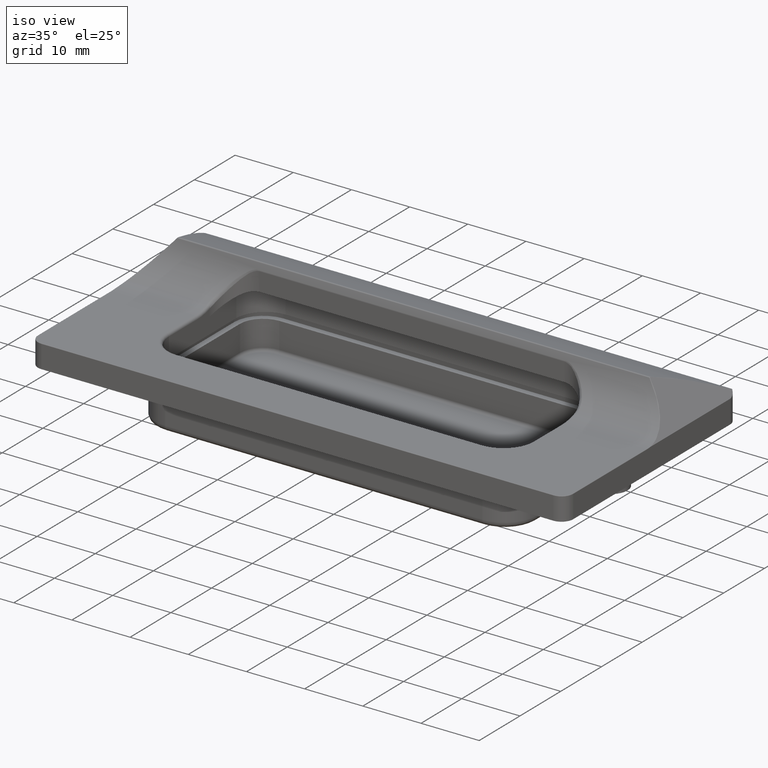
[diagram: clean part render]
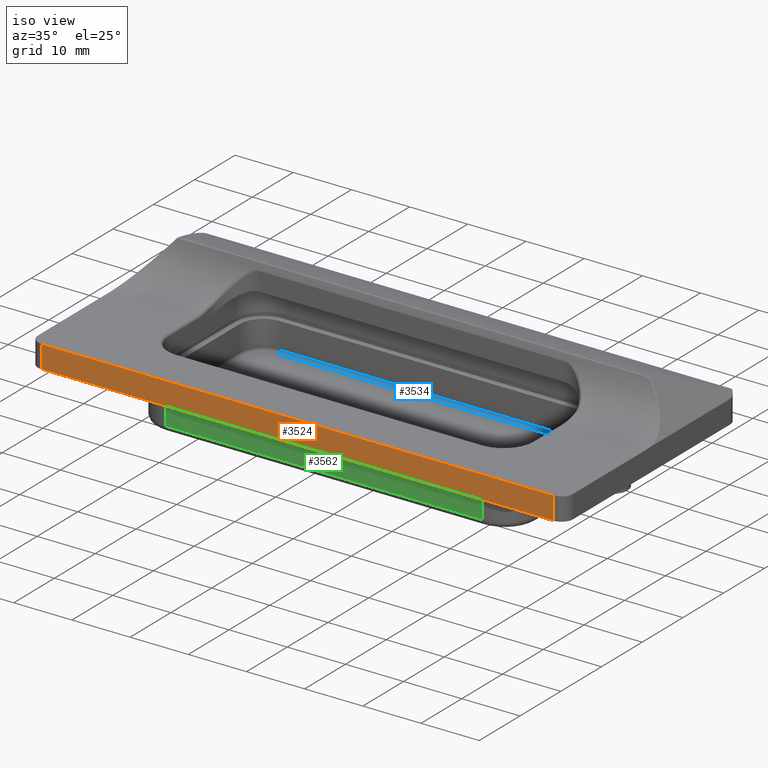
[diagram: same view with three faces highlighted in distinct colors, each labeled with its STEP entity id]
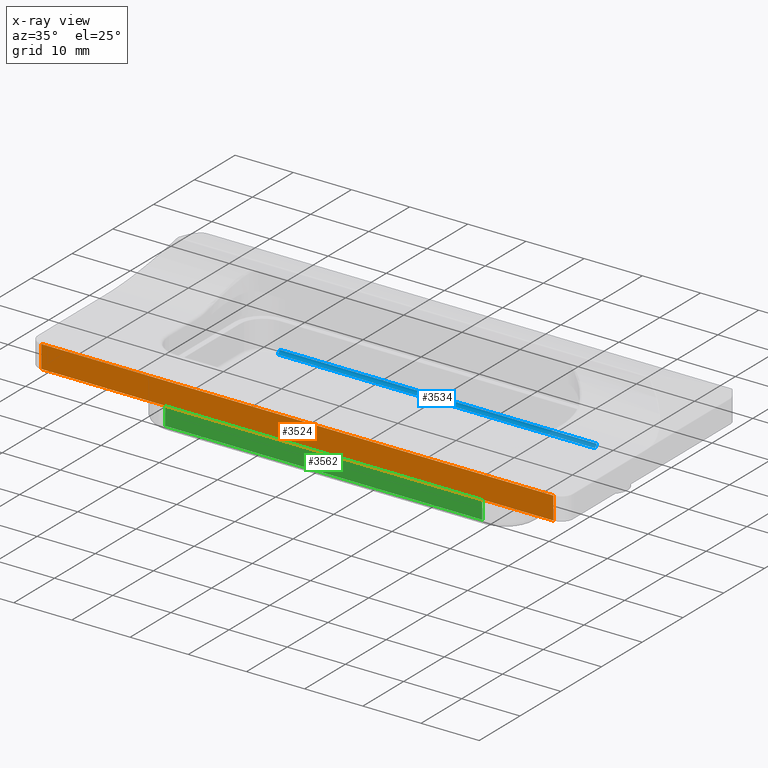
[diagram: x-ray of the same camera — body ghosted, the three highlighted faces saturated]
A machine part, iso view with three faces highlighted in distinct colors.
The next image is the same camera in x-ray (body ghosted, the three faces saturated) — at least one of them is partly hidden behind the body in this view.
Their STEP definitions:

[orange] entity #3524 — the highlighted planar face has unit normal (0, -1, -0).
#95=PLANE('',#3832);
#229=LINE('',#6875,#482);
#233=LINE('',#6908,#486);
#234=LINE('',#6910,#487);
#235=LINE('',#6911,#488);
#482=VECTOR('',#4515,88.);
#486=VECTOR('',#4537,3.9);
#487=VECTOR('',#4538,88.);
#488=VECTOR('',#4539,3.9);
#862=FACE_OUTER_BOUND('',#1080,.T.);
#1080=EDGE_LOOP('',(#2827,#2828,#2829,#2830));
#1618=VERTEX_POINT('',#6869);
#1619=VERTEX_POINT('',#6873);
#1623=VERTEX_POINT('',#6907);
#1624=VERTEX_POINT('',#6909);
#2049=EDGE_CURVE('',#1619,#1618,#229,.T.);
#2058=EDGE_CURVE('',#1623,#1619,#233,.T.);
#2059=EDGE_CURVE('',#1623,#1624,#234,.T.);
#2060=EDGE_CURVE('',#1618,#1624,#235,.T.);
#2827=ORIENTED_EDGE('',*,*,#2049,.F.);
#2828=ORIENTED_EDGE('',*,*,#2058,.F.);
#2829=ORIENTED_EDGE('',*,*,#2059,.T.);
#2830=ORIENTED_EDGE('',*,*,#2060,.F.);
#3524=ADVANCED_FACE('',(#862),#95,.T.);
#3832=AXIS2_PLACEMENT_3D('',#6906,#4535,#4536);
#4515=DIRECTION('',(1.,0.,0.));
#4535=DIRECTION('center_axis',(0.,-1.,-1.83697019872103E-16));
#4536=DIRECTION('ref_axis',(0.,1.83697019872103E-16,-1.));
#4537=DIRECTION('',(0.,-1.83697019872103E-16,1.));
#4538=DIRECTION('',(1.,0.,0.));
#4539=DIRECTION('',(0.,1.83697019872103E-16,-1.));
#6869=CARTESIAN_POINT('',(44.,2.64310193353749E-17,-0.100000000000004));
#6873=CARTESIAN_POINT('',(-44.,2.64310193353742E-17,-0.1));
#6875=CARTESIAN_POINT('',(0.,1.73472347597681E-17,-0.1));
#6906=CARTESIAN_POINT('Origin',(0.,0.,0.));
#6907=CARTESIAN_POINT('',(-44.,7.34788079488412E-16,-4.));
#6908=CARTESIAN_POINT('',(-44.,0.,0.043883767704977));
#6909=CARTESIAN_POINT('',(44.,7.34788079488412E-16,-4.));
#6910=CARTESIAN_POINT('',(0.,7.34788079488412E-16,-4.));
#6911=CARTESIAN_POINT('',(44.,0.,0.043883767704977));

[blue] entity #3534 — the highlighted cylindrical surface (edge-blend (fillet) strip) has radius 0.5 mm, axis along (1, 0, -0).
#245=LINE('',#6946,#498);
#246=LINE('',#6949,#499);
#498=VECTOR('',#4581,54.5);
#499=VECTOR('',#4584,54.5);
#696=CYLINDRICAL_SURFACE('',#3847,0.5);
#872=FACE_OUTER_BOUND('',#1091,.T.);
#1091=EDGE_LOOP('',(#2891,#2892,#2893,#2894));
#1298=CIRCLE('',#3848,0.5);
#1299=CIRCLE('',#3849,0.5);
#1631=VERTEX_POINT('',#6942);
#1632=VERTEX_POINT('',#6943);
#1633=VERTEX_POINT('',#6945);
#1634=VERTEX_POINT('',#6947);
#2074=EDGE_CURVE('',#1631,#1632,#1298,.T.);
#2075=EDGE_CURVE('',#1632,#1633,#245,.T.);
#2076=EDGE_CURVE('',#1633,#1634,#1299,.T.);
#2077=EDGE_CURVE('',#1634,#1631,#246,.T.);
#2891=ORIENTED_EDGE('',*,*,#2074,.T.);
#2892=ORIENTED_EDGE('',*,*,#2075,.T.);
#2893=ORIENTED_EDGE('',*,*,#2076,.T.);
#2894=ORIENTED_EDGE('',*,*,#2077,.T.);
#3534=ADVANCED_FACE('',(#872),#696,.F.);
#3847=AXIS2_PLACEMENT_3D('',#6941,#4577,#4578);
#3848=AXIS2_PLACEMENT_3D('',#6944,#4579,#4580);
#3849=AXIS2_PLACEMENT_3D('',#6948,#4582,#4583);
#4577=DIRECTION('center_axis',(1.,0.,0.));
#4578=DIRECTION('ref_axis',(0.,0.707106781186549,-0.707106781186546));
#4579=DIRECTION('center_axis',(-1.,8.88178419700124E-15,0.));
#4580=DIRECTION('ref_axis',(8.88178419700124E-15,1.,0.));
#4581=DIRECTION('',(1.,0.,0.));
#4582=DIRECTION('center_axis',(1.,0.,0.));
#4583=DIRECTION('ref_axis',(0.,0.,-1.));
#4584=DIRECTION('',(-1.,0.,0.));
#6941=CARTESIAN_POINT('Origin',(13.625,12.75,-5.6));
#6942=CARTESIAN_POINT('',(-27.25,13.25,-5.6));
#6943=CARTESIAN_POINT('',(-27.25,12.75,-6.1));
#6944=CARTESIAN_POINT('Origin',(-27.25,12.75,-5.6));
#6945=CARTESIAN_POINT('',(27.25,12.75,-6.1));
#6946=CARTESIAN_POINT('',(13.625,12.75,-6.1));
#6947=CARTESIAN_POINT('',(27.25,13.25,-5.6));
#6948=CARTESIAN_POINT('Origin',(27.25,12.75,-5.6));
#6949=CARTESIAN_POINT('',(13.625,13.25,-5.6));

[green] entity #3562 — the highlighted planar face has unit normal (0, -1, 0).
#107=PLANE('',#3913);
#262=LINE('',#7027,#515);
#276=LINE('',#7080,#529);
#277=LINE('',#7083,#530);
#278=LINE('',#7086,#531);
#515=VECTOR('',#4674,54.5);
#529=VECTOR('',#4736,5.6);
#530=VECTOR('',#4739,5.6);
#531=VECTOR('',#4744,54.5);
#900=FACE_OUTER_BOUND('',#1119,.T.);
#1119=EDGE_LOOP('',(#3011,#3012,#3013,#3014));
#1657=VERTEX_POINT('',#7019);
#1659=VERTEX_POINT('',#7025);
#1674=VERTEX_POINT('',#7078);
#1675=VERTEX_POINT('',#7082);
#2115=EDGE_CURVE('',#1659,#1657,#262,.T.);
#2142=EDGE_CURVE('',#1674,#1659,#276,.T.);
#2143=EDGE_CURVE('',#1675,#1657,#277,.T.);
#2145=EDGE_CURVE('',#1675,#1674,#278,.T.);
#3011=ORIENTED_EDGE('',*,*,#2115,.F.);
#3012=ORIENTED_EDGE('',*,*,#2142,.F.);
#3013=ORIENTED_EDGE('',*,*,#2145,.F.);
#3014=ORIENTED_EDGE('',*,*,#2143,.T.);
#3562=ADVANCED_FACE('',(#900),#107,.T.);
#3913=AXIS2_PLACEMENT_3D('',#7085,#4742,#4743);
#4674=DIRECTION('',(-1.,4.07421293440424E-17,0.));
#4736=DIRECTION('',(0.,0.,-1.));
#4739=DIRECTION('',(0.,0.,-1.));
#4742=DIRECTION('center_axis',(-4.07421293440424E-17,-1.,0.));
#4743=DIRECTION('ref_axis',(-1.,0.,0.));
#4744=DIRECTION('',(1.,-4.07421293440424E-17,0.));
#7019=CARTESIAN_POINT('',(-27.25,-14.8,-6.7));
#7025=CARTESIAN_POINT('',(27.25,-14.8,-6.7));
#7027=CARTESIAN_POINT('',(13.625,-14.8,-6.7));
#7078=CARTESIAN_POINT('',(27.25,-14.8,-1.1));
#7080=CARTESIAN_POINT('',(27.25,-14.8,-1.1));
#7082=CARTESIAN_POINT('',(-27.25,-14.8,-1.1));
#7083=CARTESIAN_POINT('',(-27.25,-14.8,-1.1));
#7085=CARTESIAN_POINT('Origin',(27.25,-14.8,-1.1));
#7086=CARTESIAN_POINT('',(13.625,-14.8,-1.1));